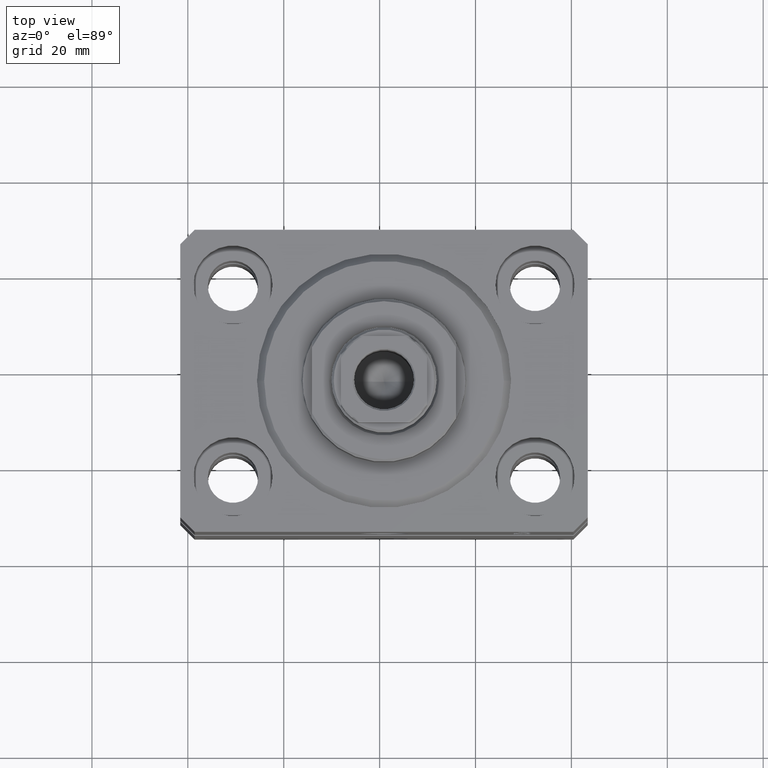
[diagram: clean part render]
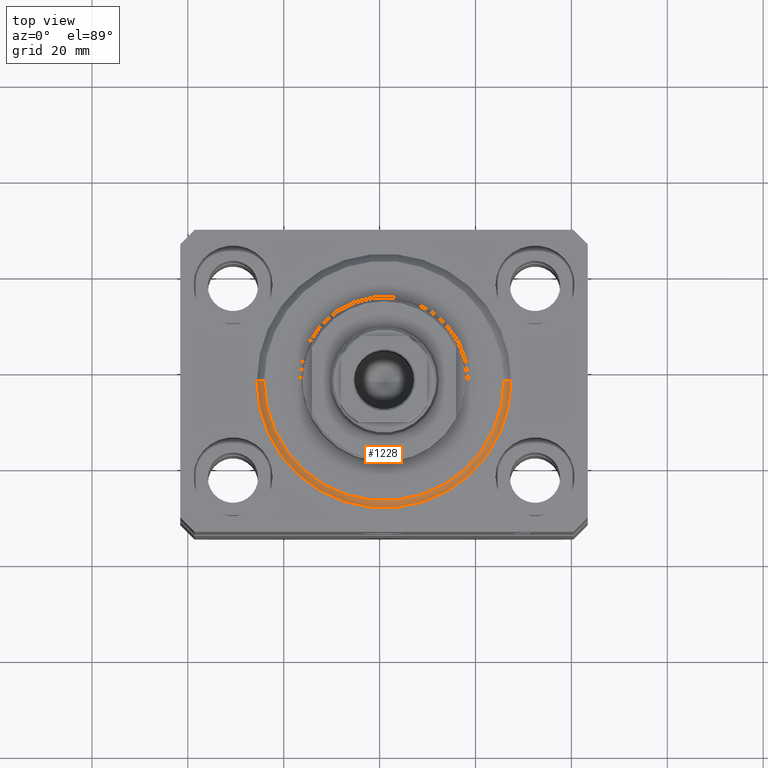
[diagram: same view with one face highlighted and labeled with its STEP entity id]
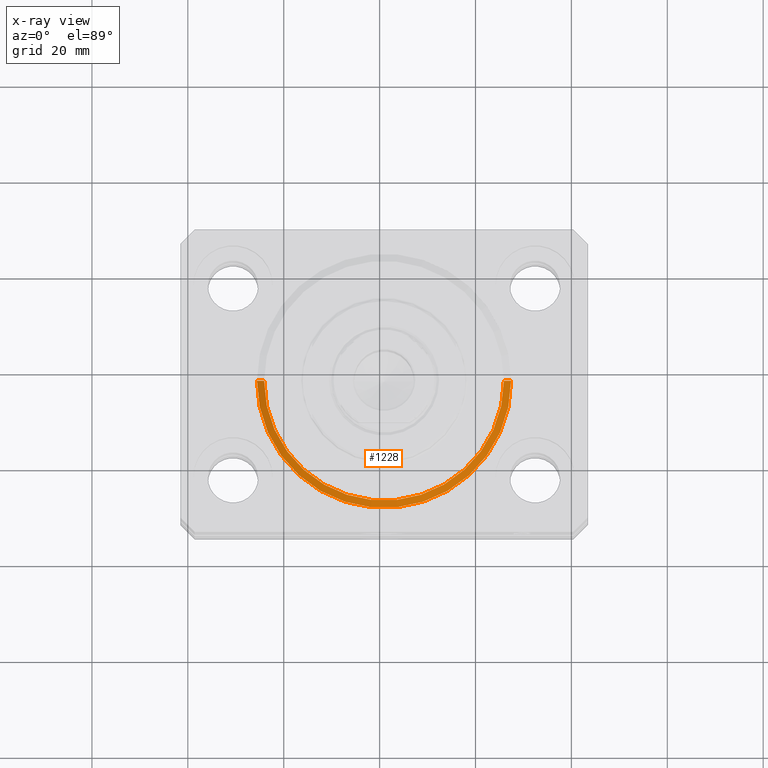
[diagram: x-ray of the same camera — body ghosted, the highlighted face saturated]
A machine part, top view. The second image highlights one B-rep face of the part: STEP entity #1228.
The next image is the same camera in x-ray: the body ghosted, the highlighted face saturated — about 0% of this face is hidden behind the body in this view.
In plain terms, the highlighted conical surface has half-angle 45 deg.
Its self-contained STEP definition (entity closure, byte-faithful):
#84 = CARTESIAN_POINT ( 'NONE',  ( 26.50000000000000355, 0.000000000000000000, 1.500000000000046407 ) ) ;
#137 = CARTESIAN_POINT ( 'NONE',  ( 0.000000000000000000, 0.000000000000000000, 1.500000000000046407 ) ) ;
#802 = CARTESIAN_POINT ( 'NONE',  ( -26.50000000000000355, 0.000000000000000000, 1.500000000000046407 ) ) ;
#1228 = ADVANCED_FACE ( 'NONE', ( #11665 ), #41534, .T. ) ;
#1672 = VERTEX_POINT ( 'NONE', #16982 ) ;
#3033 = DIRECTION ( 'NONE',  ( 1.000000000000000000, 0.000000000000000000, 0.000000000000000000 ) ) ;
#3160 = CARTESIAN_POINT ( 'NONE',  ( -24.99999999999995026, 3.153465507804431248E-15, 0.000000000000000000 ) ) ;
#3339 = VERTEX_POINT ( 'NONE', #802 ) ;
#3540 = DIRECTION ( 'NONE',  ( 1.000000000000000000, 0.000000000000000000, 0.000000000000000000 ) ) ;
#6497 = DIRECTION ( 'NONE',  ( 1.000000000000000000, 0.000000000000000000, 0.000000000000000000 ) ) ;
#7727 = LINE ( 'NONE', #41723, #16933 ) ;
#11665 = FACE_OUTER_BOUND ( 'NONE', #33000, .T. ) ;
#11890 = AXIS2_PLACEMENT_3D ( 'NONE', #23495, #30754, #3540 ) ;
#13222 = DIRECTION ( 'NONE',  ( 0.7071067811865491270, 0.000000000000000000, 0.7071067811865459074 ) ) ;
#14061 = CARTESIAN_POINT ( 'NONE',  ( 26.50000000000000355, 3.245314017740485765E-15, 1.500000000000046407 ) ) ;
#14368 = ORIENTED_EDGE ( 'NONE', *, *, #14639, .F. ) ;
#14639 = EDGE_CURVE ( 'NONE', #3339, #33794, #16038, .T. ) ;
#14891 = EDGE_CURVE ( 'NONE', #1672, #33794, #27072, .T. ) ;
#16038 = CIRCLE ( 'NONE', #21811, 26.50000000000000355 ) ;
#16933 = VECTOR ( 'NONE', #24499, 1000.000000000000000 ) ;
#16982 = CARTESIAN_POINT ( 'NONE',  ( 24.99999999999995026, 0.000000000000000000, 0.000000000000000000 ) ) ;
#18182 = VERTEX_POINT ( 'NONE', #3160 ) ;
#18887 = VECTOR ( 'NONE', #13222, 1000.000000000000000 ) ;
#20815 = EDGE_CURVE ( 'NONE', #18182, #3339, #7727, .T. ) ;
#21289 = AXIS2_PLACEMENT_3D ( 'NONE', #25488, #43842, #3033 ) ;
#21811 = AXIS2_PLACEMENT_3D ( 'NONE', #137, #23712, #6497 ) ;
#23495 = CARTESIAN_POINT ( 'NONE',  ( 0.000000000000000000, 0.000000000000000000, 0.000000000000000000 ) ) ;
#23712 = DIRECTION ( 'NONE',  ( -0.000000000000000000, -0.000000000000000000, 1.000000000000000000 ) ) ;
#24202 = CIRCLE ( 'NONE', #11890, 24.99999999999995026 ) ;
#24499 = DIRECTION ( 'NONE',  ( -0.7071067811865491270, 8.659560562354952580E-17, 0.7071067811865459074 ) ) ;
#25488 = CARTESIAN_POINT ( 'NONE',  ( 0.000000000000000000, 0.000000000000000000, 1.500000000000046407 ) ) ;
#27072 = LINE ( 'NONE', #84, #18887 ) ;
#27288 = ORIENTED_EDGE ( 'NONE', *, *, #14891, .T. ) ;
#30754 = DIRECTION ( 'NONE',  ( -0.000000000000000000, -0.000000000000000000, -1.000000000000000000 ) ) ;
#31328 = ORIENTED_EDGE ( 'NONE', *, *, #20815, .F. ) ;
#32266 = ORIENTED_EDGE ( 'NONE', *, *, #35868, .F. ) ;
#33000 = EDGE_LOOP ( 'NONE', ( #31328, #32266, #27288, #14368 ) ) ;
#33794 = VERTEX_POINT ( 'NONE', #14061 ) ;
#35868 = EDGE_CURVE ( 'NONE', #1672, #18182, #24202, .T. ) ;
#41534 = CONICAL_SURFACE ( 'NONE', #21289, 26.50000000000000355, 0.7853981633974506105 ) ;
#41723 = CARTESIAN_POINT ( 'NONE',  ( -26.50000000000000355, 3.245314017740486554E-15, 1.500000000000046407 ) ) ;
#43842 = DIRECTION ( 'NONE',  ( -0.000000000000000000, -0.000000000000000000, 1.000000000000000000 ) ) ;